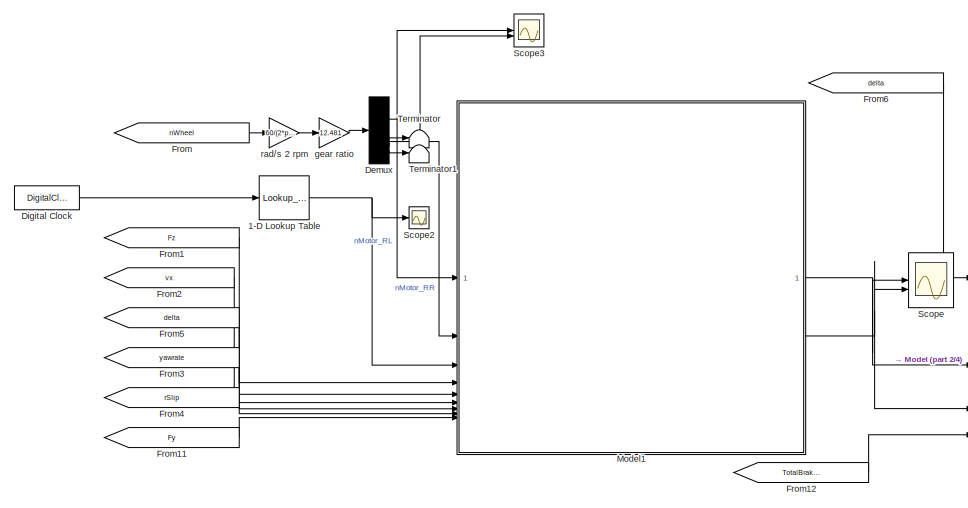
[diagram: root canvas - part 1/4, top center region]
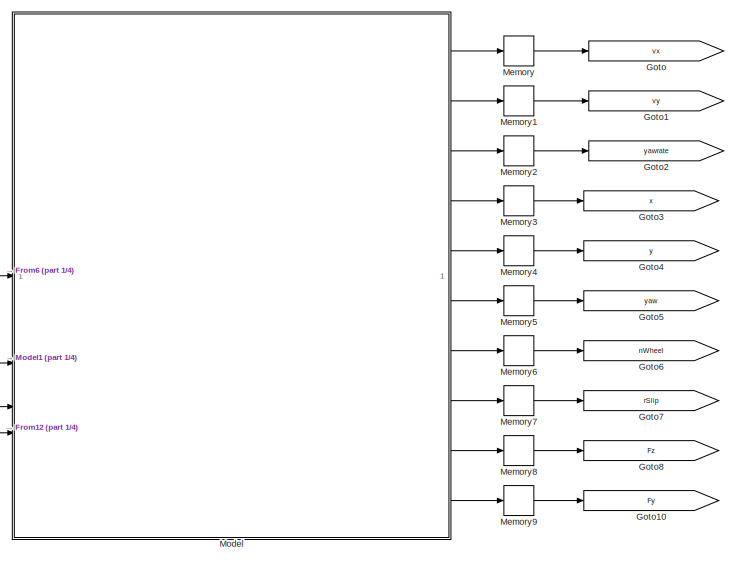
[diagram: root canvas - part 2/4, top right region]
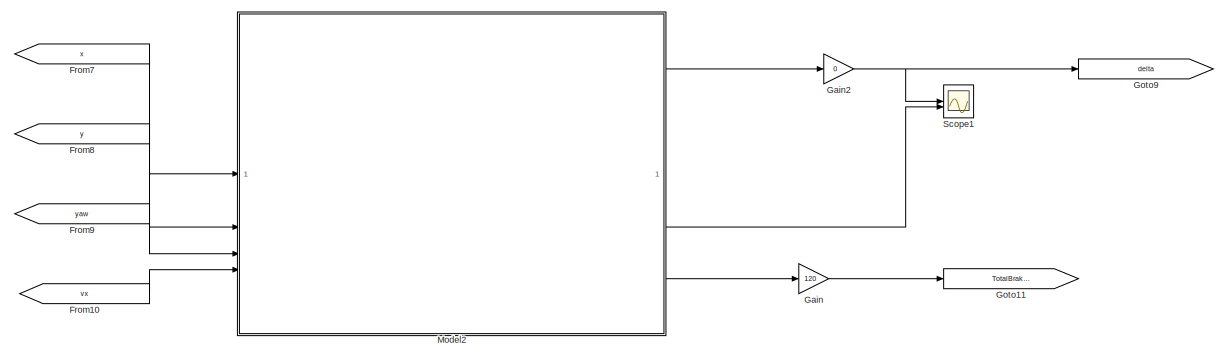
[diagram: root canvas - part 3/4, top left region]
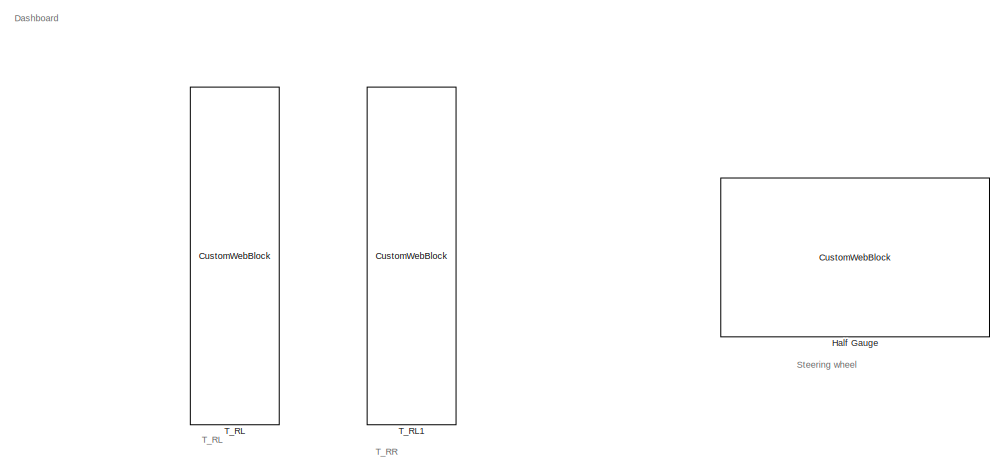
[diagram: root canvas - part 4/4, bottom right region]
MODEL slx_119af2abcd4e
KIND model
CONFIG AbsTol = auto
CONFIG EnableMultiTasking = off
CONFIG FixedStep = Ts
CONFIG MaxStep = auto
CONFIG MinStep = auto
CONFIG RelTol = 1e-3
CONFIG SampleTimeConstraint = Unconstrained
CONFIG SolverName = FixedStepAuto
CONFIG StartTime = 0.0
CONFIG StopTime = 10
BLOCK [Lookup_n-D] 1-D Lookup Table
  BreakpointsForDimension1 = t_vec
  InputPortMap = u0
  InternalRulePriority = Speed
  NumberOfTableDimensions = 1
  RndMeth = Simplest
  Table = u_vec
BLOCK [Demux] Demux
BLOCK [DigitalClock] Digital Clock
BLOCK [From] From
  GotoTag = nWheel
BLOCK [From] From1
  GotoTag = Fz
BLOCK [From] From10
  GotoTag = vx
BLOCK [From] From11
  GotoTag = Fy
BLOCK [From] From12
  GotoTag = TotalBrakePressure
BLOCK [From] From2
  GotoTag = vx
BLOCK [From] From3
  GotoTag = yawrate
BLOCK [From] From4
  GotoTag = rSlip
BLOCK [From] From5
  GotoTag = delta
BLOCK [From] From6
  GotoTag = delta
BLOCK [From] From7
  GotoTag = x
BLOCK [From] From8
  GotoTag = y
BLOCK [From] From9
  GotoTag = yaw
BLOCK [Gain] Gain
  Gain = 120
BLOCK [Gain] Gain2
  Gain = 0
BLOCK [Goto] Goto
  GotoTag = vx
BLOCK [Goto] Goto1
  GotoTag = vy
BLOCK [Goto] Goto10
  GotoTag = Fy
BLOCK [Goto] Goto11
  GotoTag = TotalBrakePressure
BLOCK [Goto] Goto2
  GotoTag = yawrate
BLOCK [Goto] Goto3
  GotoTag = x
BLOCK [Goto] Goto4
  GotoTag = y
BLOCK [Goto] Goto5
  GotoTag = yaw
BLOCK [Goto] Goto6
  GotoTag = nWheel
BLOCK [Goto] Goto7
  GotoTag = rSlip
BLOCK [Goto] Goto8
  GotoTag = Fz
BLOCK [Goto] Goto9
  GotoTag = delta
BLOCK [CustomWebBlock] Half Gauge
  Configuration = {"components":[{"name":"CircularScaleComponent","settings":{"bounds":{"max":20,"min":-20,"tickInterval":"auto"},"direction":"cw","flipLimits":0,"innerRadius":0.75,"internalTickHeightScaleFactor":1,"labelColor":[255,255,200],"labelFont":{"font":"Arial","fontSize":12},"labelRadius":0.528,"labelTransparency":1,"minorTickHeightScaleFactor":0.2,"needleImage":{"size":[200,50],"src":"data:image\/svg+xml;...<+8211ch>
  LabelPosition = Hide
  ShowInitialText = on
BLOCK [Memory] Memory
  InitialCondition = v0
BLOCK [Memory] Memory1
BLOCK [Memory] Memory2
BLOCK [Memory] Memory3
BLOCK [Memory] Memory4
BLOCK [Memory] Memory5
BLOCK [Memory] Memory6
  InitialCondition = v0/Re
BLOCK [Memory] Memory7
BLOCK [Memory] Memory8
BLOCK [Memory] Memory9
BLOCK [ModelReference] Model
  ModelNameDialog = main_vehicle_v2.slx
  ModelReferenceVersion = 1.94
BLOCK [ModelReference] Model1
  ModelNameDialog = torque_structure.slx
  ModelReferenceVersion = 1.58
BLOCK [ModelReference] Model2
  ModelNameDialog = driver_model.slx
  ModelReferenceVersion = 1.15
BLOCK [Scope] Scope
  Floating = off
  NumInputPorts = 2
  ScopeSpecificationString = Simulink.scopes.TimeScopeBlockCfg('CurrentConfiguration', extmgr.ConfigurationSet(extmgr.Configuration('Core','General UI',true),extmgr.Configuration('Core','Source UI',true),extmgr.Configuration('Sources','WiredSimulink',true),extmgr.Configuration('Visuals','Time Domain',true,'SerializedDisplays',{struct('MinYLimReal','-206.82992','MaxYLimReal','466.71749','YLabelReal','','MinYLimMag',' 0.00000',...<+1596ch>
BLOCK [Scope] Scope1
  Floating = off
  NumInputPorts = 2
  ScopeSpecificationString = Simulink.scopes.TimeScopeBlockCfg('CurrentConfiguration', extmgr.ConfigurationSet(extmgr.Configuration('Core','General UI',true),extmgr.Configuration('Core','Source UI',true),extmgr.Configuration('Sources','WiredSimulink',true,'DataLoggingVariableName','ScopeData1'),extmgr.Configuration('Visuals','Time Domain',true,'SerializedDisplays',{struct('MinYLimReal','-12.74721','MaxYLimReal','12.84896','YL...<+2197ch>
BLOCK [Scope] Scope2
  Floating = off
  NumInputPorts = 1
  ScopeSpecificationString = Simulink.scopes.TimeScopeBlockCfg('CurrentConfiguration', extmgr.ConfigurationSet(extmgr.Configuration('Core','General UI',true),extmgr.Configuration('Core','Source UI',true),extmgr.Configuration('Sources','WiredSimulink',true,'DataLoggingVariableName','ScopeData1'),extmgr.Configuration('Visuals','Time Domain',true),extmgr.Configuration('Tools','Plot Navigation',true),extmgr.Configuration('Tools',...<+40ch>
BLOCK [Scope] Scope3
  Floating = off
  NumInputPorts = 2
  ScopeSpecificationString = Simulink.scopes.TimeScopeBlockCfg('CurrentConfiguration', extmgr.ConfigurationSet(extmgr.Configuration('Core','General UI',true),extmgr.Configuration('Core','Source UI',true),extmgr.Configuration('Sources','WiredSimulink',true,'DataLoggingVariableName','ScopeData1'),extmgr.Configuration('Visuals','Time Domain',true,'SerializedDisplays',{struct('MinYLimReal','-2504.86079','MaxYLimReal','22543.74714...<+1920ch>
BLOCK [CustomWebBlock] T_RL
  Configuration = {"components":[{"name":"LinearScaleComponent","settings":{"bounds":{"max":200,"min":0,"tickInterval":"auto"},"internalTickHeightScaleFactor":0.5,"labelColor":[255,255,200],"labelFont":{"font":"Arial","fontSize":12},"labelOffset":0.05,"labelTransparency":1,"needleImage":{"size":[0,0],"src":""},"needleOffset":[0,0],"needleSize":{"height":0,"width":0},"position":[0.004621853013666404,-0.0147368581671...<+2160ch>
  CustomBackgroundColor = {"color":[0,0,0],"show":true}
  LabelPosition = Hide
  ShowInitialText = on
BLOCK [CustomWebBlock] T_RL1
  Configuration = {"components":[{"name":"LinearScaleComponent","settings":{"bounds":{"max":200,"min":0,"tickInterval":"auto"},"internalTickHeightScaleFactor":0.5,"labelColor":[255,255,200],"labelFont":{"font":"Arial","fontSize":12},"labelOffset":0.05,"labelTransparency":1,"needleImage":{"size":[0,0],"src":""},"needleOffset":[0,0],"needleSize":{"height":0,"width":0},"position":[0.004621853013666404,-0.0147368581671...<+2160ch>
  CustomBackgroundColor = {"color":[0,0,0],"show":true}
  LabelPosition = Hide
  ShowInitialText = on
BLOCK [Terminator] Terminator
BLOCK [Terminator] Terminator1
BLOCK [Gain] gear ratio
  Gain = 12.481
BLOCK [Gain] rad//s 2 rpm
  Gain = 60/(2*pi)
ANNOTATION (root): Dashboard
ANNOTATION (root): Steering wheel
ANNOTATION (root): T_RL
ANNOTATION (root): T_RR
NET 1-D Lookup Table:1 -> Model1:3, Scope2:1
NET Demux:1 -> Model1:1, Scope3:1
NET Demux:2 -> Model1:2, Scope3:2
LINE Demux:3 -> Terminator:1
LINE Demux:4 -> Terminator1:1
LINE Digital Clock:1 -> 1-D Lookup Table:1
LINE From10:1 -> Model2:4
LINE From11:1 -> Model1:9
LINE From12:1 -> Model:4
LINE From1:1 -> Model1:4
LINE From2:1 -> Model1:5
LINE From3:1 -> Model1:7
LINE From4:1 -> Model1:8
LINE From5:1 -> Model1:6
LINE From6:1 -> Model:1
LINE From7:1 -> Model2:1
LINE From8:1 -> Model2:2
LINE From9:1 -> Model2:3
LINE From:1 -> rad//s 2 rpm:1
NET Gain2:1 -> Goto9:1, Scope1:1
LINE Gain:1 -> Goto11:1
LINE Memory1:1 -> Goto1:1
LINE Memory2:1 -> Goto2:1
LINE Memory3:1 -> Goto3:1
LINE Memory4:1 -> Goto4:1
LINE Memory5:1 -> Goto5:1
LINE Memory6:1 -> Goto6:1
LINE Memory7:1 -> Goto7:1
LINE Memory8:1 -> Goto8:1
LINE Memory9:1 -> Goto10:1
LINE Memory:1 -> Goto:1
NET Model1:1 -> Model:2, Scope:1
NET Model1:2 -> Model:3, Scope:2
LINE Model2:1 -> Gain2:1
LINE Model2:2 -> Scope1:2
LINE Model2:3 -> Gain:1
LINE Model:1 -> Memory:1
LINE Model:10 -> Memory9:1
LINE Model:2 -> Memory1:1
LINE Model:3 -> Memory2:1
LINE Model:4 -> Memory3:1
LINE Model:5 -> Memory4:1
LINE Model:6 -> Memory5:1
LINE Model:7 -> Memory6:1
LINE Model:8 -> Memory7:1
LINE Model:9 -> Memory8:1
LINE gear ratio:1 -> Demux:1
LINE rad//s 2 rpm:1 -> gear ratio:1
note: NET lines group one-source signal fan-out (src -> all destinations, sorted); 1:1 wires keep LINE
